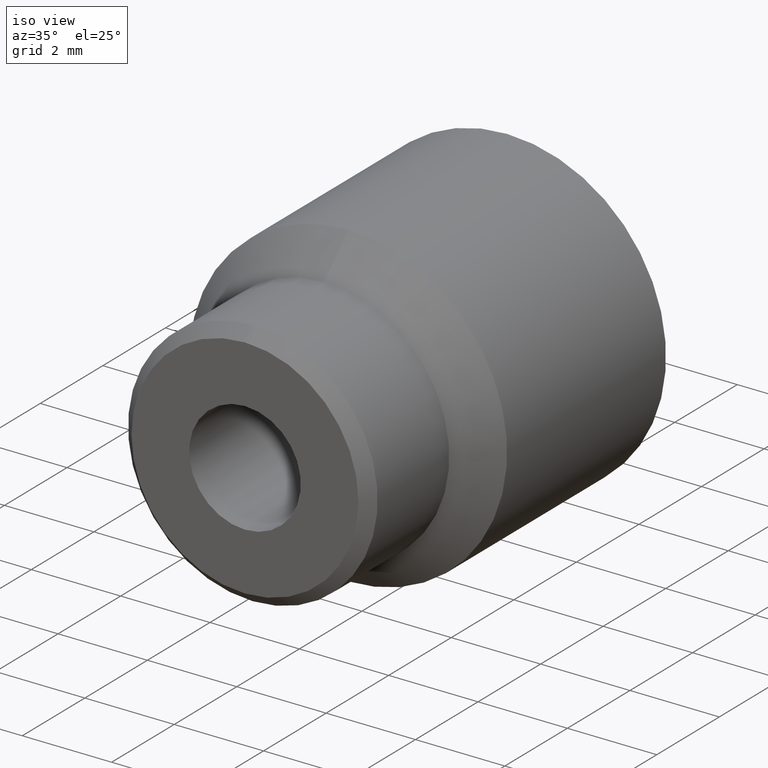
[diagram: clean part render]
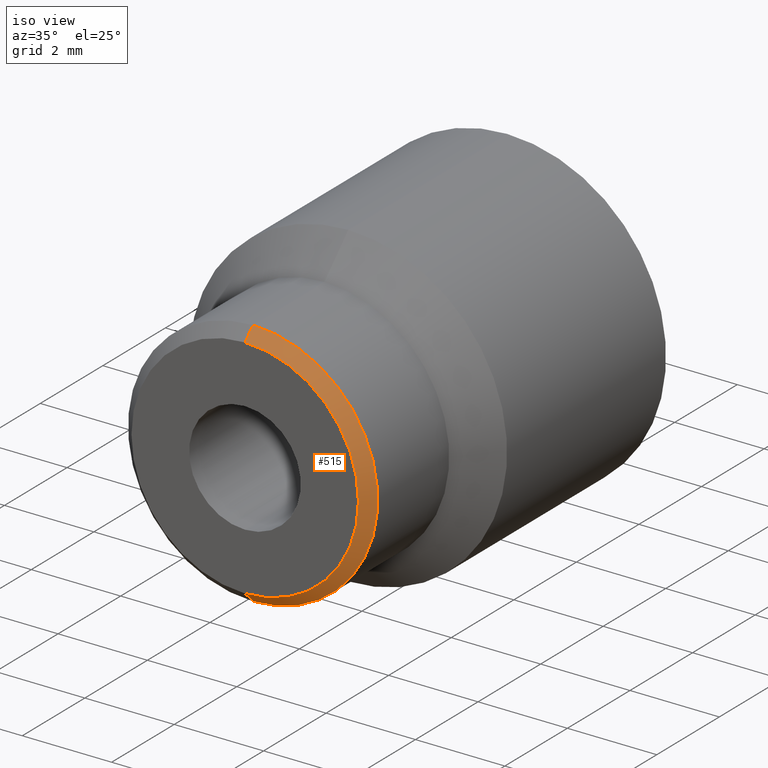
[diagram: same view with one face highlighted and labeled with its STEP entity id]
A machine part, iso view. The second image highlights one B-rep face of the part: STEP entity #515.
In plain terms, the highlighted conical surface has half-angle 45 deg.
Its self-contained STEP definition (entity closure, byte-faithful):
#13 = DIRECTION ( 'NONE',  ( 8.659560562354948900E-017, 0.7071067811865462400, -0.7071067811865487900 ) ) ;
#46 = CARTESIAN_POINT ( 'NONE',  ( -0.8936271735354411900, 0.2858041395763716300, 0.2584913485094972300 ) ) ;
#50 = DIRECTION ( 'NONE',  ( 0.0000000000000000000, 0.7071067811865462400, 0.7071067811865487900 ) ) ;
#86 = DIRECTION ( 'NONE',  ( -0.0000000000000000000, 1.000000000000000000, -0.0000000000000000000 ) ) ;
#104 = CARTESIAN_POINT ( 'NONE',  ( -0.8936271735354411900, 0.2858041395763716300, 0.1584913485094971700 ) ) ;
#110 = CARTESIAN_POINT ( 'NONE',  ( -0.8936271735354411900, 0.2958041395763715800, 0.04849134850949712200 ) ) ;
#135 = DIRECTION ( 'NONE',  ( 0.0000000000000000000, 0.0000000000000000000, 1.000000000000000000 ) ) ;
#144 = DIRECTION ( 'NONE',  ( 0.0000000000000000000, 0.0000000000000000000, 1.000000000000000000 ) ) ;
#157 = DIRECTION ( 'NONE',  ( 0.0000000000000000000, 0.0000000000000000000, 1.000000000000000000 ) ) ;
#179 = CARTESIAN_POINT ( 'NONE',  ( -0.8936271735354411900, 0.2858041395763716300, 0.05849134850949711700 ) ) ;
#206 = CARTESIAN_POINT ( 'NONE',  ( -0.8936271735354411900, 0.2858041395763716300, 0.1584913485094971700 ) ) ;
#230 = CARTESIAN_POINT ( 'NONE',  ( -0.8936271735354411900, 0.2958041395763715800, 0.1584913485094971700 ) ) ;
#253 = DIRECTION ( 'NONE',  ( -0.0000000000000000000, 1.000000000000000000, -0.0000000000000000000 ) ) ;
#323 = DIRECTION ( 'NONE',  ( -0.0000000000000000000, 1.000000000000000000, -0.0000000000000000000 ) ) ;
#337 = VECTOR ( 'NONE', #13, 39.37007874015748100 ) ;
#338 = CIRCLE ( 'NONE', #346, 0.1100000000000000600 ) ;
#343 = CIRCLE ( 'NONE', #345, 0.1000000000000000600 ) ;
#345 = AXIS2_PLACEMENT_3D ( 'NONE', #206, #253, #157 ) ;
#346 = AXIS2_PLACEMENT_3D ( 'NONE', #230, #323, #144 ) ;
#354 = VECTOR ( 'NONE', #50, 39.37007874015748100 ) ;
#468 = EDGE_CURVE ( 'NONE', #809, #674, #693, .T. ) ;
#470 = EDGE_CURVE ( 'NONE', #820, #809, #343, .T. ) ;
#471 = EDGE_CURVE ( 'NONE', #795, #674, #338, .T. ) ;
#476 = EDGE_CURVE ( 'NONE', #820, #795, #741, .T. ) ;
#515 = ADVANCED_FACE ( 'NONE', ( #865 ), #553, .T. ) ;
#553 = CONICAL_SURFACE ( 'NONE', #601, 0.1000000000000000600, 0.7853981633974501700 ) ;
#601 = AXIS2_PLACEMENT_3D ( 'NONE', #104, #86, #135 ) ;
#638 = CARTESIAN_POINT ( 'NONE',  ( -0.8936271735354411900, 0.2858041395763716300, 0.05849134850949711700 ) ) ;
#640 = CARTESIAN_POINT ( 'NONE',  ( -0.8936271735354411900, 0.2958041395763715800, 0.2684913485094972400 ) ) ;
#642 = CARTESIAN_POINT ( 'NONE',  ( -0.8936271735354411900, 0.2858041395763716300, 0.2584913485094972300 ) ) ;
#657 = ORIENTED_EDGE ( 'NONE', *, *, #468, .T. ) ;
#667 = EDGE_LOOP ( 'NONE', ( #800, #657, #739, #716 ) ) ;
#674 = VERTEX_POINT ( 'NONE', #110 ) ;
#693 = LINE ( 'NONE', #179, #337 ) ;
#716 = ORIENTED_EDGE ( 'NONE', *, *, #476, .F. ) ;
#739 = ORIENTED_EDGE ( 'NONE', *, *, #471, .F. ) ;
#741 = LINE ( 'NONE', #46, #354 ) ;
#795 = VERTEX_POINT ( 'NONE', #640 ) ;
#800 = ORIENTED_EDGE ( 'NONE', *, *, #470, .T. ) ;
#809 = VERTEX_POINT ( 'NONE', #638 ) ;
#820 = VERTEX_POINT ( 'NONE', #642 ) ;
#865 = FACE_OUTER_BOUND ( 'NONE', #667, .T. ) ;